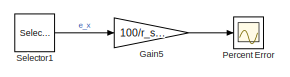
[diagram: root canvas - part 1/3, top right region]
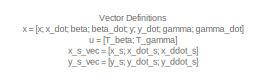
[diagram: root canvas - part 2/3, middle left region]
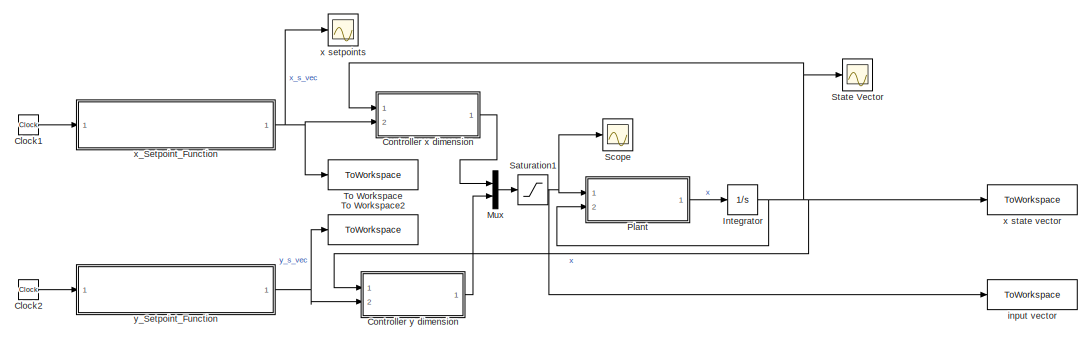
[diagram: root canvas - part 3/3, bottom left region]
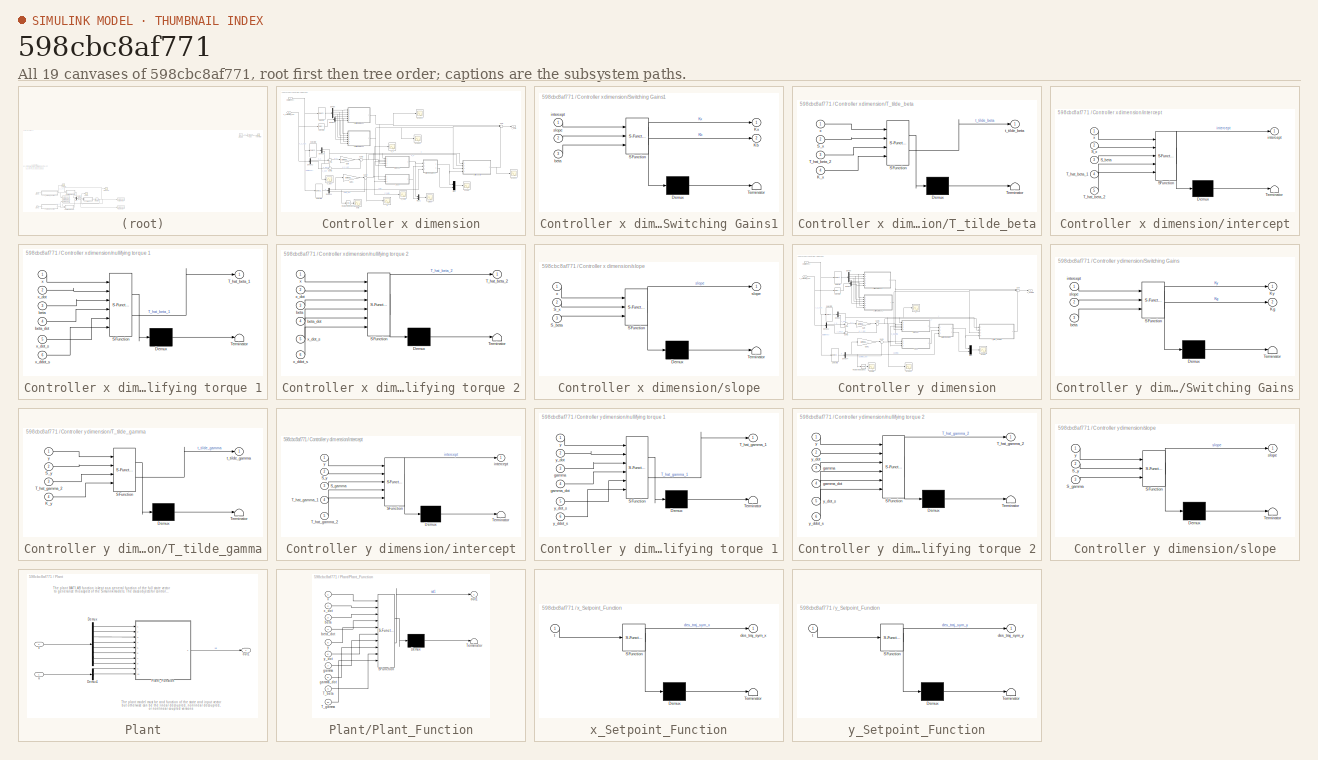
[diagram: thumbnail index - all 19 canvases of the model, root first then tree order]
MODEL slx_598cbc8af771
KIND model
CONFIG AbsTol = auto
CONFIG EnableMultiTasking = off
CONFIG FixedStep = auto
CONFIG MaxStep = auto
CONFIG MinStep = auto
CONFIG RelTol = 1e-9
CONFIG SampleTimeConstraint = Unconstrained
CONFIG SolverName = VariableStepAuto
CONFIG StartTime = 0.0
CONFIG StopTime = t_sim
BLOCK [Clock] Clock1
BLOCK [Clock] Clock2
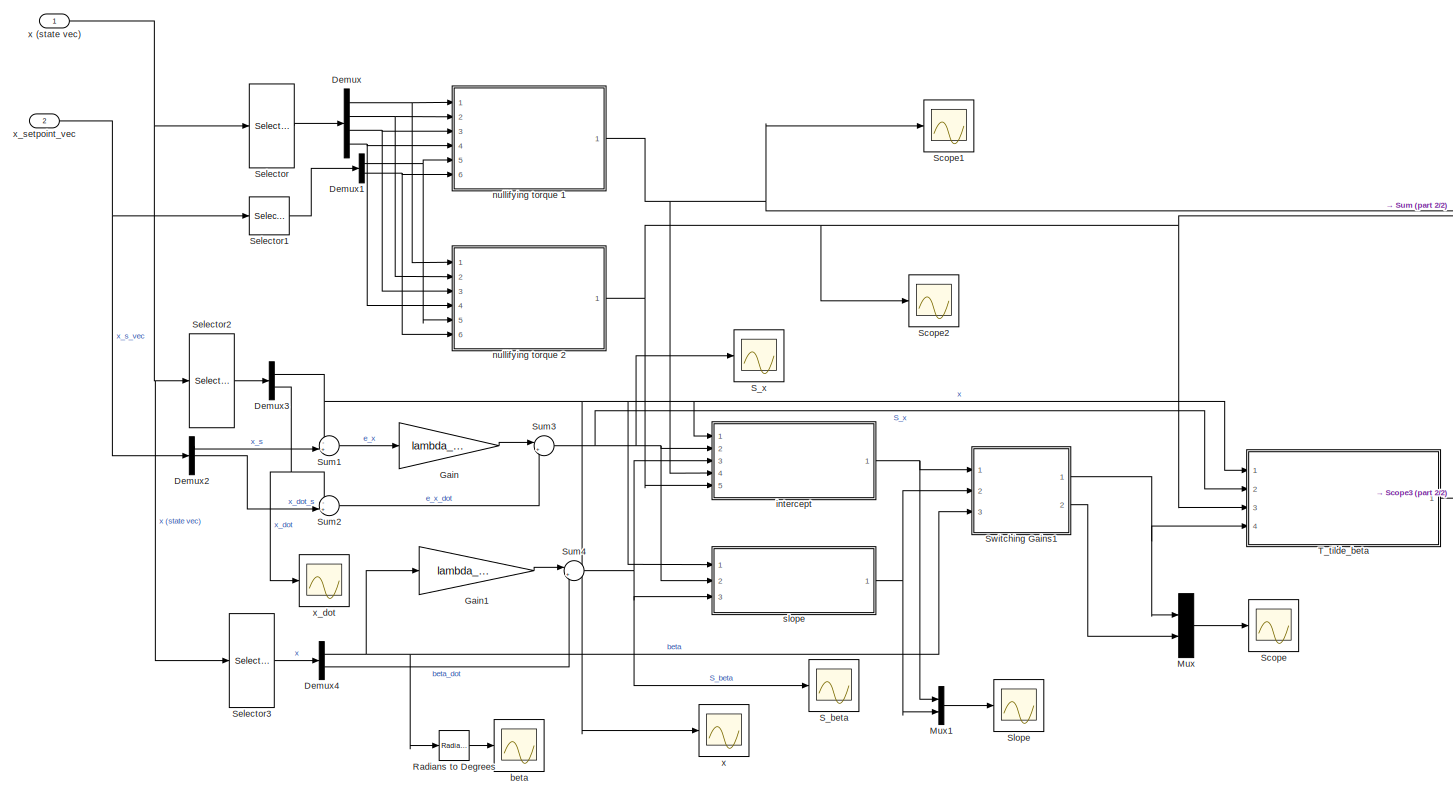
[diagram: Controller x dimension - part 1/2, most of the canvas]
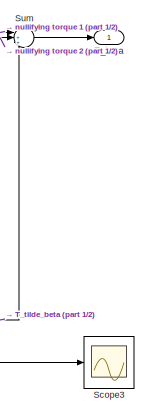
[diagram: Controller x dimension - part 2/2, middle right region]
BLOCK [SubSystem] Controller x dimension
  Ports = [2, 1]
  RequestExecContextInheritance = off
BLOCK [Demux] Controller x dimension/Demux
  NameLocation = right
  Ports = [1, 4]
BLOCK [Demux] Controller x dimension/Demux1
  Outputs = 2
  Ports = [1, 2]
BLOCK [Demux] Controller x dimension/Demux2
  Outputs = 3
  Ports = [1, 3]
BLOCK [Demux] Controller x dimension/Demux3
  Outputs = 2
  Ports = [1, 2]
BLOCK [Demux] Controller x dimension/Demux4
  Outputs = 2
  Ports = [1, 2]
BLOCK [Gain] Controller x dimension/Gain
  Gain = lambda_x_num
BLOCK [Gain] Controller x dimension/Gain1
  Gain = lambda_beta_num
BLOCK [Mux] Controller x dimension/Mux
  DisplayOption = bar
  Inputs = 2
  Ports = [2, 1]
BLOCK [Mux] Controller x dimension/Mux1
  DisplayOption = bar
  Inputs = 2
  Ports = [2, 1]
BLOCK [Reference] Controller x dimension/Radians to Degrees  REF=simulink_extras/Transformations/Radians
to Degrees
  Ports = [1, 1]
  SourceBlock = simulink_extras/Transformations/Radians\nto Degrees
  SourceProductBaseCode = SL
  SourceType = RadiansToDegrees
BLOCK [Scope] Controller x dimension/S_beta
  Floating = off
  NumInputPorts = 1
  Ports = [1]
  ScopeSpecificationString = Simulink.scopes.TimeScopeBlockCfg('CurrentConfiguration', extmgr.ConfigurationSet(extmgr.Configuration('Core','General UI',true),extmgr.Configuration('Core','Source UI',true),extmgr.Configuration('Sources','WiredSimulink',true,'DataLoggingVariableName','ScopeData2'),extmgr.Configuration('Visuals','Time Domain',true,'SerializedDisplays',{struct('MinYLimReal','-383.83681','MaxYLimReal','3454.54213',...<+1456ch>
BLOCK [Scope] Controller x dimension/S_x
  Floating = off
  NumInputPorts = 1
  Ports = [1]
  ScopeSpecificationString = Simulink.scopes.TimeScopeBlockCfg('CurrentConfiguration', extmgr.ConfigurationSet(extmgr.Configuration('Core','General UI',true),extmgr.Configuration('Core','Source UI',true),extmgr.Configuration('Sources','WiredSimulink',true,'DataLoggingVariableName','ScopeData1'),extmgr.Configuration('Visuals','Time Domain',true,'SerializedDisplays',{struct('MinYLimReal','-233.52913','MaxYLimReal','22.58708','Y...<+1448ch>
BLOCK [Scope] Controller x dimension/Scope
  Floating = off
  NumInputPorts = 1
  Ports = [1]
  ScopeSpecificationString = Simulink.scopes.TimeScopeBlockCfg('CurrentConfiguration', extmgr.ConfigurationSet(extmgr.Configuration('Core','General UI',true),extmgr.Configuration('Core','Source UI',true),extmgr.Configuration('Sources','WiredSimulink',true,'DataLoggingVariableName','ScopeData1'),extmgr.Configuration('Visuals','Time Domain',true,'SerializedDisplays',{struct('MinYLimReal','-68.07854','MaxYLimReal','696.88537','Y...<+1507ch>
BLOCK [Scope] Controller x dimension/Scope1
  Floating = off
  NumInputPorts = 1
  Ports = [1]
  ScopeSpecificationString = Simulink.scopes.TimeScopeBlockCfg('CurrentConfiguration', extmgr.ConfigurationSet(extmgr.Configuration('Core','General UI',true),extmgr.Configuration('Core','Source UI',true),extmgr.Configuration('Sources','WiredSimulink',true,'DataLoggingVariableName','ScopeData5'),extmgr.Configuration('Visuals','Time Domain',true,'SerializedDisplays',{struct('MinYLimReal','-12935.85065','MaxYLimReal','116436.289...<+1485ch>
BLOCK [Scope] Controller x dimension/Scope2
  Floating = off
  NumInputPorts = 1
  Ports = [1]
  ScopeSpecificationString = Simulink.scopes.TimeScopeBlockCfg('CurrentConfiguration', extmgr.ConfigurationSet(extmgr.Configuration('Core','General UI',true),extmgr.Configuration('Core','Source UI',true),extmgr.Configuration('Sources','WiredSimulink',true,'DataLoggingVariableName','ScopeData6'),extmgr.Configuration('Visuals','Time Domain',true,'SerializedDisplays',{struct('MinYLimReal','-0.05977','MaxYLimReal','0.00181','YLab...<+1451ch>
BLOCK [Scope] Controller x dimension/Scope3
  Floating = off
  NumInputPorts = 1
  Ports = [1]
  ScopeSpecificationString = Simulink.scopes.TimeScopeBlockCfg('CurrentConfiguration', extmgr.ConfigurationSet(extmgr.Configuration('Core','General UI',true),extmgr.Configuration('Core','Source UI',true),extmgr.Configuration('Sources','WiredSimulink',true,'DataLoggingVariableName','ScopeData4'),extmgr.Configuration('Visuals','Time Domain',true,'SerializedDisplays',{struct('MinYLimReal','-9662.22264','MaxYLimReal','86980.13073...<+1495ch>
BLOCK [Selector] Controller x dimension/Selector
  IndexOptions = Index vector (dialog)
  Indices = [1:4]
  InputPortWidth = 8
  OutputSizes = 1
  Ports = [1, 1]
BLOCK [Selector] Controller x dimension/Selector1
  IndexOptions = Index vector (dialog)
  Indices = [2 3]
  InputPortWidth = 3
  OutputSizes = 1
  Ports = [1, 1]
BLOCK [Selector] Controller x dimension/Selector2
  IndexOptions = Index vector (dialog)
  Indices = [1 2]
  InputPortWidth = 8
  OutputSizes = 1
  Ports = [1, 1]
BLOCK [Selector] Controller x dimension/Selector3
  IndexOptions = Index vector (dialog)
  Indices = [3 4]
  InputPortWidth = 8
  OutputSizes = 1
  Ports = [1, 1]
BLOCK [Scope] Controller x dimension/Slope
  Floating = off
  NumInputPorts = 1
  Ports = [1]
  ScopeSpecificationString = Simulink.scopes.TimeScopeBlockCfg('CurrentConfiguration', extmgr.ConfigurationSet(extmgr.Configuration('Core','General UI',true),extmgr.Configuration('Core','Source UI',true),extmgr.Configuration('Sources','WiredSimulink',true,'DataLoggingVariableName','ScopeData3'),extmgr.Configuration('Visuals','Time Domain',true,'SerializedDisplays',{struct('MinYLimReal','-26.32584','MaxYLimReal','-14.72554','Y...<+1455ch>
BLOCK [Sum] Controller x dimension/Sum
  Inputs = |+++
  Ports = [3, 1]
BLOCK [Sum] Controller x dimension/Sum1
  Inputs = -+|
  Ports = [2, 1]
BLOCK [Sum] Controller x dimension/Sum2
  Inputs = -+|
  Ports = [2, 1]
BLOCK [Sum] Controller x dimension/Sum3
  Inputs = |++
  Ports = [2, 1]
BLOCK [Sum] Controller x dimension/Sum4
  Inputs = |++
  Ports = [2, 1]
BLOCK [SubSystem] Controller x dimension/Switching Gains1
  ErrorFcn = Stateflow.Translate.translate
  PermitHierarchicalResolution = ExplicitOnly
  Ports = [3, 2]
  RequestExecContextInheritance = off
  SFBlockType = MATLAB Function
  TreatAsAtomicUnit = on
BLOCK [Demux] Controller x dimension/Switching Gains1/ Demux 
  Outputs = 1
  Ports = [1, 1]
BLOCK [S-Function] Controller x dimension/Switching Gains1/ SFunction 
  EnableBusSupport = on
  FunctionName = sf_sfun
  PortCounts = [3 3]
  Ports = [3, 3]
  SFcnIsStateOwnerBlock = off
  SFunctionDeploymentMode = off
  Tag = Stateflow S-Function 17
BLOCK [Terminator] Controller x dimension/Switching Gains1/ Terminator 
BLOCK [Outport] Controller x dimension/Switching Gains1/Kb
  Port = 2
BLOCK [Outport] Controller x dimension/Switching Gains1/Kx
BLOCK [Inport] Controller x dimension/Switching Gains1/beta
  Port = 3
BLOCK [Inport] Controller x dimension/Switching Gains1/intercept
BLOCK [Inport] Controller x dimension/Switching Gains1/slope
  Port = 2
BLOCK [Outport] Controller x dimension/T_beta
BLOCK [SubSystem] Controller x dimension/T_tilde_beta
  ErrorFcn = Stateflow.Translate.translate
  PermitHierarchicalResolution = ExplicitOnly
  Ports = [4, 1]
  RequestExecContextInheritance = off
  SFBlockType = MATLAB Function
  TreatAsAtomicUnit = on
BLOCK [Demux] Controller x dimension/T_tilde_beta/ Demux 
  Outputs = 1
  Ports = [1, 1]
BLOCK [S-Function] Controller x dimension/T_tilde_beta/ SFunction 
  EnableBusSupport = on
  FunctionName = sf_sfun
  PortCounts = [4 2]
  Ports = [4, 2]
  SFcnIsStateOwnerBlock = off
  SFunctionDeploymentMode = off
  Tag = Stateflow S-Function 11
BLOCK [Terminator] Controller x dimension/T_tilde_beta/ Terminator 
BLOCK [Inport] Controller x dimension/T_tilde_beta/K_x
  Port = 4
BLOCK [Inport] Controller x dimension/T_tilde_beta/S_x
  Port = 2
BLOCK [Inport] Controller x dimension/T_tilde_beta/T_hat_beta_2
  Port = 3
BLOCK [Outport] Controller x dimension/T_tilde_beta/t_tilde_beta
BLOCK [Inport] Controller x dimension/T_tilde_beta/x
BLOCK [Scope] Controller x dimension/beta
  Floating = off
  NumInputPorts = 1
  Ports = [1]
  ScopeSpecificationString = Simulink.scopes.TimeScopeBlockCfg('CurrentConfiguration', extmgr.ConfigurationSet(extmgr.Configuration('Core','General UI',true),extmgr.Configuration('Core','Source UI',true),extmgr.Configuration('Sources','WiredSimulink',true,'DataLoggingVariableName','ScopeData7'),extmgr.Configuration('Visuals','Time Domain',true,'SerializedDisplays',{struct('MinYLimReal','0.00007275799','MaxYLimReal','0.0000727...<+1496ch>
BLOCK [SubSystem] Controller x dimension/intercept
  ErrorFcn = Stateflow.Translate.translate
  PermitHierarchicalResolution = ExplicitOnly
  Ports = [5, 1]
  RequestExecContextInheritance = off
  SFBlockType = MATLAB Function
  TreatAsAtomicUnit = on
BLOCK [Demux] Controller x dimension/intercept/ Demux 
  Outputs = 1
  Ports = [1, 1]
BLOCK [S-Function] Controller x dimension/intercept/ SFunction 
  EnableBusSupport = on
  FunctionName = sf_sfun
  PortCounts = [5 2]
  Ports = [5, 2]
  SFcnIsStateOwnerBlock = off
  SFunctionDeploymentMode = off
  Tag = Stateflow S-Function 9
BLOCK [Terminator] Controller x dimension/intercept/ Terminator 
BLOCK [Inport] Controller x dimension/intercept/S_beta
  Port = 3
BLOCK [Inport] Controller x dimension/intercept/S_x
  Port = 2
BLOCK [Inport] Controller x dimension/intercept/T_hat_beta_1
  Port = 4
BLOCK [Inport] Controller x dimension/intercept/T_hat_beta_2
  Port = 5
BLOCK [Outport] Controller x dimension/intercept/intercept
BLOCK [Inport] Controller x dimension/intercept/x
BLOCK [SubSystem] Controller x dimension/nullifying torque 1
  ErrorFcn = Stateflow.Translate.translate
  PermitHierarchicalResolution = ExplicitOnly
  Ports = [6, 1]
  RequestExecContextInheritance = off
  SFBlockType = MATLAB Function
  TreatAsAtomicUnit = on
BLOCK [Demux] Controller x dimension/nullifying torque 1/ Demux 
  Outputs = 1
  Ports = [1, 1]
BLOCK [S-Function] Controller x dimension/nullifying torque 1/ SFunction 
  EnableBusSupport = on
  FunctionName = sf_sfun
  PortCounts = [6 2]
  Ports = [6, 2]
  SFcnIsStateOwnerBlock = off
  SFunctionDeploymentMode = off
  Tag = Stateflow S-Function 5
BLOCK [Terminator] Controller x dimension/nullifying torque 1/ Terminator 
BLOCK [Outport] Controller x dimension/nullifying torque 1/T_hat_beta_1
BLOCK [Inport] Controller x dimension/nullifying torque 1/beta
  Port = 3
BLOCK [Inport] Controller x dimension/nullifying torque 1/beta_dot
  Port = 4
BLOCK [Inport] Controller x dimension/nullifying torque 1/x
BLOCK [Inport] Controller x dimension/nullifying torque 1/x_ddot_s
  Port = 6
BLOCK [Inport] Controller x dimension/nullifying torque 1/x_dot
  Port = 2
BLOCK [Inport] Controller x dimension/nullifying torque 1/x_dot_s
  Port = 5
BLOCK [SubSystem] Controller x dimension/nullifying torque 2
  ErrorFcn = Stateflow.Translate.translate
  PermitHierarchicalResolution = ExplicitOnly
  Ports = [6, 1]
  RequestExecContextInheritance = off
  SFBlockType = MATLAB Function
  TreatAsAtomicUnit = on
BLOCK [Demux] Controller x dimension/nullifying torque 2/ Demux 
  Outputs = 1
  Ports = [1, 1]
BLOCK [S-Function] Controller x dimension/nullifying torque 2/ SFunction 
  EnableBusSupport = on
  FunctionName = sf_sfun
  PortCounts = [6 2]
  Ports = [6, 2]
  SFcnIsStateOwnerBlock = off
  SFunctionDeploymentMode = off
  Tag = Stateflow S-Function 4
BLOCK [Terminator] Controller x dimension/nullifying torque 2/ Terminator 
BLOCK [Outport] Controller x dimension/nullifying torque 2/T_hat_beta_2
BLOCK [Inport] Controller x dimension/nullifying torque 2/beta
  Port = 3
BLOCK [Inport] Controller x dimension/nullifying torque 2/beta_dot
  Port = 4
BLOCK [Inport] Controller x dimension/nullifying torque 2/x
BLOCK [Inport] Controller x dimension/nullifying torque 2/x_ddot_s
  Port = 6
BLOCK [Inport] Controller x dimension/nullifying torque 2/x_dot
  Port = 2
BLOCK [Inport] Controller x dimension/nullifying torque 2/x_dot_s
  Port = 5
BLOCK [SubSystem] Controller x dimension/slope
  ErrorFcn = Stateflow.Translate.translate
  PermitHierarchicalResolution = ExplicitOnly
  Ports = [3, 1]
  RequestExecContextInheritance = off
  SFBlockType = MATLAB Function
  TreatAsAtomicUnit = on
BLOCK [Demux] Controller x dimension/slope/ Demux 
  Outputs = 1
  Ports = [1, 1]
BLOCK [S-Function] Controller x dimension/slope/ SFunction 
  EnableBusSupport = on
  FunctionName = sf_sfun
  PortCounts = [3 2]
  Ports = [3, 2]
  SFcnIsStateOwnerBlock = off
  SFunctionDeploymentMode = off
  Tag = Stateflow S-Function 8
BLOCK [Terminator] Controller x dimension/slope/ Terminator 
BLOCK [Inport] Controller x dimension/slope/S_beta
  Port = 3
BLOCK [Inport] Controller x dimension/slope/S_x
  Port = 2
BLOCK [Outport] Controller x dimension/slope/slope
BLOCK [Inport] Controller x dimension/slope/x
BLOCK [Scope] Controller x dimension/x
  Floating = off
  NumInputPorts = 1
  Ports = [1]
  ScopeSpecificationString = Simulink.scopes.TimeScopeBlockCfg('CurrentConfiguration', extmgr.ConfigurationSet(extmgr.Configuration('Core','General UI',true),extmgr.Configuration('Core','Source UI',true),extmgr.Configuration('Sources','WiredSimulink',true,'DataLoggingVariableName','ScopeData8'),extmgr.Configuration('Visuals','Time Domain',true,'SerializedDisplays',{struct('MinYLimReal','-4.18215','MaxYLimReal','41.85697','YLa...<+1437ch>
BLOCK [Inport] Controller x dimension/x (state vec)
BLOCK [Scope] Controller x dimension/x_dot
  Floating = off
  NumInputPorts = 1
  Ports = [1]
  ScopeSpecificationString = Simulink.scopes.TimeScopeBlockCfg('CurrentConfiguration', extmgr.ConfigurationSet(extmgr.Configuration('Core','General UI',true),extmgr.Configuration('Core','Source UI',true),extmgr.Configuration('Sources','WiredSimulink',true,'DataLoggingVariableName','ScopeData1'),extmgr.Configuration('Visuals','Time Domain',true,'SerializedDisplays',{struct('MinYLimReal','-0.00003','MaxYLimReal','0.000014','YLa...<+1441ch>
BLOCK [Inport] Controller x dimension/x_setpoint_vec
  Port = 2
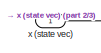
[diagram: Controller y dimension - part 1/3, top left region]
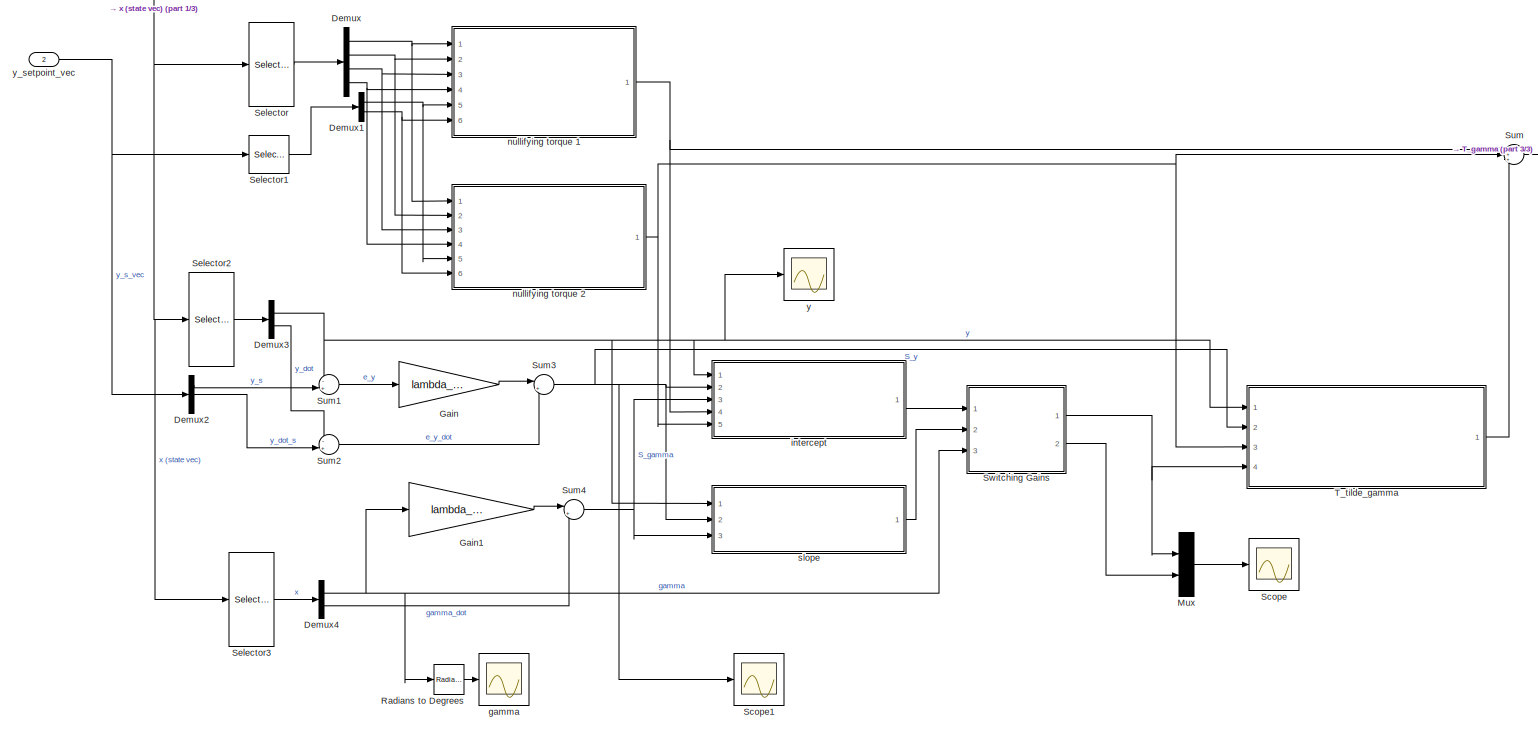
[diagram: Controller y dimension - part 2/3, most of the canvas]
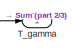
[diagram: Controller y dimension - part 3/3, top right region]
BLOCK [SubSystem] Controller y dimension
  NameLocation = top
  Ports = [2, 1]
  RequestExecContextInheritance = off
BLOCK [Demux] Controller y dimension/Demux
  NameLocation = right
  Ports = [1, 4]
BLOCK [Demux] Controller y dimension/Demux1
  Outputs = 2
  Ports = [1, 2]
BLOCK [Demux] Controller y dimension/Demux2
  Outputs = 3
  Ports = [1, 3]
BLOCK [Demux] Controller y dimension/Demux3
  Outputs = 2
  Ports = [1, 2]
BLOCK [Demux] Controller y dimension/Demux4
  Outputs = 2
  Ports = [1, 2]
BLOCK [Gain] Controller y dimension/Gain
  Gain = lambda_y_num
BLOCK [Gain] Controller y dimension/Gain1
  Gain = lambda_gamma_num
BLOCK [Mux] Controller y dimension/Mux
  DisplayOption = bar
  Inputs = 2
  Ports = [2, 1]
BLOCK [Reference] Controller y dimension/Radians to Degrees  REF=simulink_extras/Transformations/Radians
to Degrees
  Ports = [1, 1]
  SourceBlock = simulink_extras/Transformations/Radians\nto Degrees
  SourceProductBaseCode = SL
  SourceType = RadiansToDegrees
BLOCK [Scope] Controller y dimension/Scope
  Floating = off
  NumInputPorts = 1
  Ports = [1]
  ScopeSpecificationString = Simulink.scopes.TimeScopeBlockCfg('CurrentConfiguration', extmgr.ConfigurationSet(extmgr.Configuration('Core','General UI',true),extmgr.Configuration('Core','Source UI',true),extmgr.Configuration('Sources','WiredSimulink',true,'DataLoggingVariableName','ScopeData2'),extmgr.Configuration('Visuals','Time Domain',true,'SerializedDisplays',{struct('MinYLimReal','-24911229.87124','MaxYLimReal','2241608...<+1481ch>
BLOCK [Scope] Controller y dimension/Scope1
  Floating = off
  NumInputPorts = 1
  Ports = [1]
  ScopeSpecificationString = Simulink.scopes.TimeScopeBlockCfg('CurrentConfiguration', extmgr.ConfigurationSet(extmgr.Configuration('Core','General UI',true),extmgr.Configuration('Core','Source UI',true),extmgr.Configuration('Sources','WiredSimulink',true,'DataLoggingVariableName','ScopeData3'),extmgr.Configuration('Visuals','Time Domain',true,'SerializedDisplays',{struct('MinYLimReal','-79072.42359','MaxYLimReal','8785.82484...<+1445ch>
BLOCK [Selector] Controller y dimension/Selector
  IndexOptions = Index vector (dialog)
  Indices = [5:8]
  InputPortWidth = 8
  OutputSizes = 1
  Ports = [1, 1]
BLOCK [Selector] Controller y dimension/Selector1
  IndexOptions = Index vector (dialog)
  Indices = [2 3]
  InputPortWidth = 3
  OutputSizes = 1
  Ports = [1, 1]
BLOCK [Selector] Controller y dimension/Selector2
  IndexOptions = Index vector (dialog)
  Indices = [5 6]
  InputPortWidth = 8
  OutputSizes = 1
  Ports = [1, 1]
BLOCK [Selector] Controller y dimension/Selector3
  IndexOptions = Index vector (dialog)
  Indices = [7 8]
  InputPortWidth = 8
  OutputSizes = 1
  Ports = [1, 1]
BLOCK [Sum] Controller y dimension/Sum
  Inputs = |+++
  Ports = [3, 1]
BLOCK [Sum] Controller y dimension/Sum1
  Inputs = -+|
  Ports = [2, 1]
BLOCK [Sum] Controller y dimension/Sum2
  Inputs = -+|
  Ports = [2, 1]
BLOCK [Sum] Controller y dimension/Sum3
  Inputs = |++
  Ports = [2, 1]
BLOCK [Sum] Controller y dimension/Sum4
  Inputs = |++
  Ports = [2, 1]
BLOCK [SubSystem] Controller y dimension/Switching Gains
  ErrorFcn = Stateflow.Translate.translate
  PermitHierarchicalResolution = ExplicitOnly
  Ports = [3, 2]
  RequestExecContextInheritance = off
  SFBlockType = MATLAB Function
  TreatAsAtomicUnit = on
BLOCK [Demux] Controller y dimension/Switching Gains/ Demux 
  Outputs = 1
  Ports = [1, 1]
BLOCK [S-Function] Controller y dimension/Switching Gains/ SFunction 
  EnableBusSupport = on
  FunctionName = sf_sfun
  PortCounts = [3 3]
  Ports = [3, 3]
  SFcnIsStateOwnerBlock = off
  SFunctionDeploymentMode = off
  Tag = Stateflow S-Function 6
BLOCK [Terminator] Controller y dimension/Switching Gains/ Terminator 
BLOCK [Outport] Controller y dimension/Switching Gains/Kg
  Port = 2
BLOCK [Outport] Controller y dimension/Switching Gains/Ky
BLOCK [Inport] Controller y dimension/Switching Gains/beta
  Port = 3
BLOCK [Inport] Controller y dimension/Switching Gains/intercept
BLOCK [Inport] Controller y dimension/Switching Gains/slope
  Port = 2
BLOCK [Outport] Controller y dimension/T_gamma
BLOCK [SubSystem] Controller y dimension/T_tilde_gamma
  ErrorFcn = Stateflow.Translate.translate
  PermitHierarchicalResolution = ExplicitOnly
  Ports = [4, 1]
  RequestExecContextInheritance = off
  SFBlockType = MATLAB Function
  TreatAsAtomicUnit = on
BLOCK [Demux] Controller y dimension/T_tilde_gamma/ Demux 
  Outputs = 1
  Ports = [1, 1]
BLOCK [S-Function] Controller y dimension/T_tilde_gamma/ SFunction 
  EnableBusSupport = on
  FunctionName = sf_sfun
  PortCounts = [4 2]
  Ports = [4, 2]
  SFcnIsStateOwnerBlock = off
  SFunctionDeploymentMode = off
  Tag = Stateflow S-Function 7
BLOCK [Terminator] Controller y dimension/T_tilde_gamma/ Terminator 
BLOCK [Inport] Controller y dimension/T_tilde_gamma/K_y
  Port = 4
BLOCK [Inport] Controller y dimension/T_tilde_gamma/S_y
  Port = 2
BLOCK [Inport] Controller y dimension/T_tilde_gamma/T_hat_gamma_2
  Port = 3
BLOCK [Outport] Controller y dimension/T_tilde_gamma/t_tilde_gamma
BLOCK [Inport] Controller y dimension/T_tilde_gamma/y
BLOCK [Scope] Controller y dimension/gamma
  Floating = off
  NumInputPorts = 1
  Ports = [1]
  ScopeSpecificationString = Simulink.scopes.TimeScopeBlockCfg('CurrentConfiguration', extmgr.ConfigurationSet(extmgr.Configuration('Core','General UI',true),extmgr.Configuration('Core','Source UI',true),extmgr.Configuration('Sources','WiredSimulink',true,'DataLoggingVariableName','ScopeData2'),extmgr.Configuration('Visuals','Time Domain',true,'SerializedDisplays',{struct('MinYLimReal','-485.42224','MaxYLimReal','53.93586','Y...<+1462ch>
BLOCK [SubSystem] Controller y dimension/intercept
  ErrorFcn = Stateflow.Translate.translate
  PermitHierarchicalResolution = ExplicitOnly
  Ports = [5, 1]
  RequestExecContextInheritance = off
  SFBlockType = MATLAB Function
  TreatAsAtomicUnit = on
BLOCK [Demux] Controller y dimension/intercept/ Demux 
  Outputs = 1
  Ports = [1, 1]
BLOCK [S-Function] Controller y dimension/intercept/ SFunction 
  EnableBusSupport = on
  FunctionName = sf_sfun
  PortCounts = [5 2]
  Ports = [5, 2]
  SFcnIsStateOwnerBlock = off
  SFunctionDeploymentMode = off
  Tag = Stateflow S-Function 12
BLOCK [Terminator] Controller y dimension/intercept/ Terminator 
BLOCK [Inport] Controller y dimension/intercept/S_gamma
  Port = 3
BLOCK [Inport] Controller y dimension/intercept/S_y
  Port = 2
BLOCK [Inport] Controller y dimension/intercept/T_hat_gamma_1
  Port = 4
BLOCK [Inport] Controller y dimension/intercept/T_hat_gamma_2
  Port = 5
BLOCK [Outport] Controller y dimension/intercept/intercept
BLOCK [Inport] Controller y dimension/intercept/y
BLOCK [SubSystem] Controller y dimension/nullifying torque 1
  ErrorFcn = Stateflow.Translate.translate
  PermitHierarchicalResolution = ExplicitOnly
  Ports = [6, 1]
  RequestExecContextInheritance = off
  SFBlockType = MATLAB Function
  TreatAsAtomicUnit = on
BLOCK [Demux] Controller y dimension/nullifying torque 1/ Demux 
  Outputs = 1
  Ports = [1, 1]
BLOCK [S-Function] Controller y dimension/nullifying torque 1/ SFunction 
  EnableBusSupport = on
  FunctionName = sf_sfun
  PortCounts = [6 2]
  Ports = [6, 2]
  SFcnIsStateOwnerBlock = off
  SFunctionDeploymentMode = off
  Tag = Stateflow S-Function 13
BLOCK [Terminator] Controller y dimension/nullifying torque 1/ Terminator 
BLOCK [Outport] Controller y dimension/nullifying torque 1/T_hat_gamma_1
BLOCK [Inport] Controller y dimension/nullifying torque 1/gamma
  Port = 3
BLOCK [Inport] Controller y dimension/nullifying torque 1/gamma_dot
  Port = 4
BLOCK [Inport] Controller y dimension/nullifying torque 1/y
BLOCK [Inport] Controller y dimension/nullifying torque 1/y_ddot_s
  Port = 6
BLOCK [Inport] Controller y dimension/nullifying torque 1/y_dot
  Port = 2
BLOCK [Inport] Controller y dimension/nullifying torque 1/y_dot_s
  Port = 5
BLOCK [SubSystem] Controller y dimension/nullifying torque 2
  ErrorFcn = Stateflow.Translate.translate
  PermitHierarchicalResolution = ExplicitOnly
  Ports = [6, 1]
  RequestExecContextInheritance = off
  SFBlockType = MATLAB Function
  TreatAsAtomicUnit = on
BLOCK [Demux] Controller y dimension/nullifying torque 2/ Demux 
  Outputs = 1
  Ports = [1, 1]
BLOCK [S-Function] Controller y dimension/nullifying torque 2/ SFunction 
  EnableBusSupport = on
  FunctionName = sf_sfun
  PortCounts = [6 2]
  Ports = [6, 2]
  SFcnIsStateOwnerBlock = off
  SFunctionDeploymentMode = off
  Tag = Stateflow S-Function 14
BLOCK [Terminator] Controller y dimension/nullifying torque 2/ Terminator 
BLOCK [Outport] Controller y dimension/nullifying torque 2/T_hat_gamma_2
BLOCK [Inport] Controller y dimension/nullifying torque 2/gamma
  Port = 3
BLOCK [Inport] Controller y dimension/nullifying torque 2/gamma_dot
  Port = 4
BLOCK [Inport] Controller y dimension/nullifying torque 2/y
BLOCK [Inport] Controller y dimension/nullifying torque 2/y_ddot_s
  Port = 6
BLOCK [Inport] Controller y dimension/nullifying torque 2/y_dot
  Port = 2
BLOCK [Inport] Controller y dimension/nullifying torque 2/y_dot_s
  Port = 5
BLOCK [SubSystem] Controller y dimension/slope
  ErrorFcn = Stateflow.Translate.translate
  PermitHierarchicalResolution = ExplicitOnly
  Ports = [3, 1]
  RequestExecContextInheritance = off
  SFBlockType = MATLAB Function
  TreatAsAtomicUnit = on
BLOCK [Demux] Controller y dimension/slope/ Demux 
  Outputs = 1
  Ports = [1, 1]
BLOCK [S-Function] Controller y dimension/slope/ SFunction 
  EnableBusSupport = on
  FunctionName = sf_sfun
  PortCounts = [3 2]
  Ports = [3, 2]
  SFcnIsStateOwnerBlock = off
  SFunctionDeploymentMode = off
  Tag = Stateflow S-Function 15
BLOCK [Terminator] Controller y dimension/slope/ Terminator 
BLOCK [Inport] Controller y dimension/slope/S_gamma
  Port = 3
BLOCK [Inport] Controller y dimension/slope/S_y
  Port = 2
BLOCK [Outport] Controller y dimension/slope/slope
BLOCK [Inport] Controller y dimension/slope/y
BLOCK [Inport] Controller y dimension/x (state vec)
BLOCK [Scope] Controller y dimension/y
  Floating = off
  NumInputPorts = 1
  Ports = [1]
  ScopeSpecificationString = Simulink.scopes.TimeScopeBlockCfg('CurrentConfiguration', extmgr.ConfigurationSet(extmgr.Configuration('Core','General UI',true),extmgr.Configuration('Core','Source UI',true),extmgr.Configuration('Sources','WiredSimulink',true,'DataLoggingVariableName','ScopeData3'),extmgr.Configuration('Visuals','Time Domain',true,'SerializedDisplays',{struct('MinYLimReal','-1.30274','MaxYLimReal','11.72464','YLa...<+1436ch>
BLOCK [Inport] Controller y dimension/y_setpoint_vec
  Port = 2
BLOCK [Gain] Gain5
  Commented = on
  Gain = 100/r_sim
BLOCK [Integrator] Integrator
  InitialCondition = x_0
  Ports = [1, 1]
BLOCK [Mux] Mux
  DisplayOption = bar
  Inputs = 2
  Ports = [2, 1]
BLOCK [Scope] Percent Error
  Commented = on
  Floating = off
  NumInputPorts = 1
  Ports = [1]
  ScopeSpecificationString = Simulink.scopes.TimeScopeBlockCfg('CurrentConfiguration', extmgr.ConfigurationSet(extmgr.Configuration('Core','General UI',true),extmgr.Configuration('Core','Source UI',true),extmgr.Configuration('Sources','WiredSimulink',true,'DataLoggingVariableName','ScopeData2'),extmgr.Configuration('Visuals','Time Domain',true,'SerializedDisplays',{struct('MinYLimReal','-1.29449','MaxYLimReal','1.86814','YLab...<+1556ch>
BLOCK [SubSystem] Plant
  Ports = [2, 1]
  RequestExecContextInheritance = off
BLOCK [Demux] Plant/Demux
  Outputs = 8
  Ports = [1, 8]
BLOCK [Demux] Plant/Demux1
  Outputs = 2
  Ports = [1, 2]
BLOCK [SubSystem] Plant/Plant_Function
  ErrorFcn = Stateflow.Translate.translate
  PermitHierarchicalResolution = ExplicitOnly
  Ports = [10, 1]
  RequestExecContextInheritance = off
  SFBlockType = MATLAB Function
  TreatAsAtomicUnit = on
BLOCK [Demux] Plant/Plant_Function/ Demux 
  Outputs = 1
  Ports = [1, 1]
BLOCK [S-Function] Plant/Plant_Function/ SFunction 
  EnableBusSupport = on
  FunctionName = sf_sfun
  PortCounts = [10 2]
  Ports = [10, 2]
  SFcnIsStateOwnerBlock = off
  SFunctionDeploymentMode = off
  Tag = Stateflow S-Function 1
BLOCK [Terminator] Plant/Plant_Function/ Terminator 
BLOCK [Inport] Plant/Plant_Function/T_beta
  Port = 9
BLOCK [Inport] Plant/Plant_Function/T_gamma
  Port = 10
BLOCK [Inport] Plant/Plant_Function/beta
  Port = 3
BLOCK [Inport] Plant/Plant_Function/beta_dot
  Port = 4
BLOCK [Inport] Plant/Plant_Function/gamma
  Port = 7
BLOCK [Inport] Plant/Plant_Function/gamma_dot
  Port = 8
BLOCK [Outport] Plant/Plant_Function/out1
BLOCK [Inport] Plant/Plant_Function/x
BLOCK [Inport] Plant/Plant_Function/x_dot
  Port = 2
BLOCK [Inport] Plant/Plant_Function/y
  Port = 5
BLOCK [Inport] Plant/Plant_Function/y_dot
  Port = 6
BLOCK [Outport] Plant/out1
BLOCK [Inport] Plant/u
BLOCK [Inport] Plant/x
  Port = 2
BLOCK [Saturate] Saturation1
  LowerLimit = -75/1000
  UpperLimit = 75/1000
  ZeroCross = off
BLOCK [Scope] Scope
  Floating = off
  NumInputPorts = 1
  Ports = [1]
  ScopeSpecificationString = Simulink.scopes.TimeScopeBlockCfg('CurrentConfiguration', extmgr.ConfigurationSet(extmgr.Configuration('Core','General UI',true),extmgr.Configuration('Core','Source UI',true),extmgr.Configuration('Sources','WiredSimulink',true,'DataLoggingVariableName','ScopeData4'),extmgr.Configuration('Visuals','Time Domain',true,'SerializedDisplays',{struct('MinYLimReal','-0.09375','MaxYLimReal','0.09375','YLab...<+1717ch>
BLOCK [Selector] Selector1
  Commented = on
  IndexOptions = Index vector (dialog)
  Indices = [1]
  InputPortWidth = 5
  OutputSizes = 1
  Ports = [1, 1]
BLOCK [Scope] State Vector
  Floating = off
  NumInputPorts = 1
  Ports = [1]
  ScopeSpecificationString = Simulink.scopes.TimeScopeBlockCfg('CurrentConfiguration', extmgr.ConfigurationSet(extmgr.Configuration('Core','General UI',true),extmgr.Configuration('Core','Source UI',true),extmgr.Configuration('Sources','WiredSimulink',true,'DataLoggingVariableName','ScopeData3'),extmgr.Configuration('Visuals','Time Domain',true,'SerializedDisplays',{struct('MinYLimReal','-0.15197','MaxYLimReal','1.27127','YLab...<+1595ch>
BLOCK [ToWorkspace] To Workspace
  FixptAsFi = on
  MaxDataPoints = inf
  Ports = [1]
  SampleTime = -1
  VariableName = x_s_vec
BLOCK [ToWorkspace] To Workspace2
  FixptAsFi = on
  MaxDataPoints = inf
  Ports = [1]
  SampleTime = -1
  VariableName = y_s_vec
BLOCK [ToWorkspace] input vector
  FixptAsFi = on
  MaxDataPoints = inf
  Ports = [1]
  SampleTime = -1
  VariableName = u
BLOCK [Scope] x setpoints
  Floating = off
  NumInputPorts = 1
  Ports = [1]
  ScopeSpecificationString = Simulink.scopes.TimeScopeBlockCfg('CurrentConfiguration', extmgr.ConfigurationSet(extmgr.Configuration('Core','General UI',true),extmgr.Configuration('Core','Source UI',true),extmgr.Configuration('Sources','WiredSimulink',true,'DataLoggingVariableName','ScopeData5'),extmgr.Configuration('Visuals','Time Domain',true,'SerializedDisplays',{struct('MinYLimReal','-5.33745','MaxYLimReal','5.89062','YLab...<+1583ch>
BLOCK [ToWorkspace] x state vector
  FixptAsFi = on
  MaxDataPoints = inf
  Ports = [1]
  SampleTime = -1
  VariableName = x
BLOCK [SubSystem] x_Setpoint_Function
  ErrorFcn = Stateflow.Translate.translate
  PermitHierarchicalResolution = ExplicitOnly
  Ports = [1, 1]
  RequestExecContextInheritance = off
  SFBlockType = MATLAB Function
  TreatAsAtomicUnit = on
BLOCK [Demux] x_Setpoint_Function/ Demux 
  Outputs = 1
  Ports = [1, 1]
BLOCK [S-Function] x_Setpoint_Function/ SFunction 
  EnableBusSupport = on
  FunctionName = sf_sfun
  PortCounts = [1 2]
  Ports = [1, 2]
  SFcnIsStateOwnerBlock = off
  SFunctionDeploymentMode = off
  Tag = Stateflow S-Function 2
BLOCK [Terminator] x_Setpoint_Function/ Terminator 
BLOCK [Outport] x_Setpoint_Function/des_traj_sym_x
BLOCK [Inport] x_Setpoint_Function/t
BLOCK [SubSystem] y_Setpoint_Function
  ErrorFcn = Stateflow.Translate.translate
  PermitHierarchicalResolution = ExplicitOnly
  Ports = [1, 1]
  RequestExecContextInheritance = off
  SFBlockType = MATLAB Function
  TreatAsAtomicUnit = on
BLOCK [Demux] y_Setpoint_Function/ Demux 
  Outputs = 1
  Ports = [1, 1]
BLOCK [S-Function] y_Setpoint_Function/ SFunction 
  EnableBusSupport = on
  FunctionName = sf_sfun
  PortCounts = [1 2]
  Ports = [1, 2]
  SFcnIsStateOwnerBlock = off
  SFunctionDeploymentMode = off
  Tag = Stateflow S-Function 3
BLOCK [Terminator] y_Setpoint_Function/ Terminator 
BLOCK [Outport] y_Setpoint_Function/des_traj_sym_y
BLOCK [Inport] y_Setpoint_Function/t
ANNOTATION (root): Vector Definitions x = [x; x_dot; beta; beta_dot; y; y_dot; gamma; gamma_dot] u = [T_beta; T_gamma] x_s_vec = [x_s; x_dot_s; x_ddot_s] y_s_vec = [y_s; y_dot_s; y_ddot_s]
ANNOTATION Plant: The plant MATLAB function is kept as a general function of the full state vector to generalize this aspect of the Simulink models. The class objects for controllers must define this function in terms of all possible inputs. It is ok for certain inputs to be unused.
ANNOTATION Plant: The plant model must be and function of the state and input vector but otherwise can be the linear decoupled, nonlinear decoupled, or nonlinear coupled versions
LINE Clock1:1 -> x_Setpoint_Function:1
LINE Clock2:1 -> y_Setpoint_Function:1
NET Controller x dimension/Demux1:1 -> Controller x dimension/nullifying torque 1:5, Controller x dimension/nullifying torque 2:5
NET Controller x dimension/Demux1:2 -> Controller x dimension/nullifying torque 1:6, Controller x dimension/nullifying torque 2:6
LINE Controller x dimension/Demux2:1 -> Controller x dimension/Sum1:2
LINE Controller x dimension/Demux2:2 -> Controller x dimension/Sum2:2
NET Controller x dimension/Demux3:1 -> Controller x dimension/Sum1:1, Controller x dimension/T_tilde_beta:1, Controller x dimension/intercept:1, Controller x dimension/slope:1, Controller x dimension/x:1
NET Controller x dimension/Demux3:2 -> Controller x dimension/Sum2:1, Controller x dimension/x_dot:1
NET Controller x dimension/Demux4:1 -> Controller x dimension/Gain1:1, Controller x dimension/Radians to Degrees:1, Controller x dimension/Switching Gains1:3
LINE Controller x dimension/Demux4:2 -> Controller x dimension/Sum4:2
NET Controller x dimension/Demux:1 -> Controller x dimension/nullifying torque 1:1, Controller x dimension/nullifying torque 2:1
NET Controller x dimension/Demux:2 -> Controller x dimension/nullifying torque 1:2, Controller x dimension/nullifying torque 2:2
NET Controller x dimension/Demux:3 -> Controller x dimension/nullifying torque 1:3, Controller x dimension/nullifying torque 2:3
NET Controller x dimension/Demux:4 -> Controller x dimension/nullifying torque 1:4, Controller x dimension/nullifying torque 2:4
LINE Controller x dimension/Gain1:1 -> Controller x dimension/Sum4:1
LINE Controller x dimension/Gain:1 -> Controller x dimension/Sum3:1
LINE Controller x dimension/Mux1:1 -> Controller x dimension/Slope:1
LINE Controller x dimension/Mux:1 -> Controller x dimension/Scope:1
LINE Controller x dimension/Radians to Degrees:1 -> Controller x dimension/beta:1
LINE Controller x dimension/Selector1:1 -> Controller x dimension/Demux1:1
LINE Controller x dimension/Selector2:1 -> Controller x dimension/Demux3:1
LINE Controller x dimension/Selector3:1 -> Controller x dimension/Demux4:1
LINE Controller x dimension/Selector:1 -> Controller x dimension/Demux:1
LINE Controller x dimension/Sum1:1 -> Controller x dimension/Gain:1
LINE Controller x dimension/Sum2:1 -> Controller x dimension/Sum3:2
NET Controller x dimension/Sum3:1 -> Controller x dimension/S_x:1, Controller x dimension/T_tilde_beta:2, Controller x dimension/intercept:2, Controller x dimension/slope:2
NET Controller x dimension/Sum4:1 -> Controller x dimension/S_beta:1, Controller x dimension/intercept:3, Controller x dimension/slope:3
LINE Controller x dimension/Sum:1 -> Controller x dimension/T_beta:1
NET Controller x dimension/Switching Gains1:1 -> Controller x dimension/Mux:1, Controller x dimension/T_tilde_beta:4
LINE Controller x dimension/Switching Gains1:2 -> Controller x dimension/Mux:2
NET Controller x dimension/T_tilde_beta:1 -> Controller x dimension/Scope3:1, Controller x dimension/Sum:3
NET Controller x dimension/intercept:1 -> Controller x dimension/Mux1:1, Controller x dimension/Switching Gains1:1
NET Controller x dimension/nullifying torque 1:1 -> Controller x dimension/Scope1:1, Controller x dimension/Sum:1, Controller x dimension/intercept:4
NET Controller x dimension/nullifying torque 2:1 -> Controller x dimension/Scope2:1, Controller x dimension/Sum:2, Controller x dimension/T_tilde_beta:3, Controller x dimension/intercept:5
NET Controller x dimension/slope:1 -> Controller x dimension/Mux1:2, Controller x dimension/Switching Gains1:2
NET Controller x dimension/x (state vec):1 -> Controller x dimension/Selector2:1, Controller x dimension/Selector3:1, Controller x dimension/Selector:1
NET Controller x dimension/x_setpoint_vec:1 -> Controller x dimension/Demux2:1, Controller x dimension/Selector1:1
LINE Controller x dimension:1 -> Mux:1
NET Controller y dimension/Demux1:1 -> Controller y dimension/nullifying torque 1:5, Controller y dimension/nullifying torque 2:5
NET Controller y dimension/Demux1:2 -> Controller y dimension/nullifying torque 1:6, Controller y dimension/nullifying torque 2:6
LINE Controller y dimension/Demux2:1 -> Controller y dimension/Sum1:2
LINE Controller y dimension/Demux2:2 -> Controller y dimension/Sum2:2
NET Controller y dimension/Demux3:1 -> Controller y dimension/Sum1:1, Controller y dimension/T_tilde_gamma:1, Controller y dimension/intercept:1, Controller y dimension/slope:1, Controller y dimension/y:1
LINE Controller y dimension/Demux3:2 -> Controller y dimension/Sum2:1
NET Controller y dimension/Demux4:1 -> Controller y dimension/Gain1:1, Controller y dimension/Radians to Degrees:1, Controller y dimension/Switching Gains:3
LINE Controller y dimension/Demux4:2 -> Controller y dimension/Sum4:2
NET Controller y dimension/Demux:1 -> Controller y dimension/nullifying torque 1:1, Controller y dimension/nullifying torque 2:1
NET Controller y dimension/Demux:2 -> Controller y dimension/nullifying torque 1:2, Controller y dimension/nullifying torque 2:2
NET Controller y dimension/Demux:3 -> Controller y dimension/nullifying torque 1:3, Controller y dimension/nullifying torque 2:3
NET Controller y dimension/Demux:4 -> Controller y dimension/nullifying torque 1:4, Controller y dimension/nullifying torque 2:4
LINE Controller y dimension/Gain1:1 -> Controller y dimension/Sum4:1
LINE Controller y dimension/Gain:1 -> Controller y dimension/Sum3:1
LINE Controller y dimension/Mux:1 -> Controller y dimension/Scope:1
LINE Controller y dimension/Radians to Degrees:1 -> Controller y dimension/gamma:1
LINE Controller y dimension/Selector1:1 -> Controller y dimension/Demux1:1
LINE Controller y dimension/Selector2:1 -> Controller y dimension/Demux3:1
LINE Controller y dimension/Selector3:1 -> Controller y dimension/Demux4:1
LINE Controller y dimension/Selector:1 -> Controller y dimension/Demux:1
LINE Controller y dimension/Sum1:1 -> Controller y dimension/Gain:1
LINE Controller y dimension/Sum2:1 -> Controller y dimension/Sum3:2
NET Controller y dimension/Sum3:1 -> Controller y dimension/Scope1:1, Controller y dimension/T_tilde_gamma:2, Controller y dimension/intercept:2, Controller y dimension/slope:2
NET Controller y dimension/Sum4:1 -> Controller y dimension/intercept:3, Controller y dimension/slope:3
LINE Controller y dimension/Sum:1 -> Controller y dimension/T_gamma:1
NET Controller y dimension/Switching Gains:1 -> Controller y dimension/Mux:1, Controller y dimension/T_tilde_gamma:4
LINE Controller y dimension/Switching Gains:2 -> Controller y dimension/Mux:2
LINE Controller y dimension/T_tilde_gamma:1 -> Controller y dimension/Sum:3
LINE Controller y dimension/intercept:1 -> Controller y dimension/Switching Gains:1
NET Controller y dimension/nullifying torque 1:1 -> Controller y dimension/Sum:1, Controller y dimension/intercept:4
NET Controller y dimension/nullifying torque 2:1 -> Controller y dimension/Sum:2, Controller y dimension/T_tilde_gamma:3, Controller y dimension/intercept:5
LINE Controller y dimension/slope:1 -> Controller y dimension/Switching Gains:2
NET Controller y dimension/x (state vec):1 -> Controller y dimension/Selector2:1, Controller y dimension/Selector3:1, Controller y dimension/Selector:1
NET Controller y dimension/y_setpoint_vec:1 -> Controller y dimension/Demux2:1, Controller y dimension/Selector1:1
LINE Controller y dimension:1 -> Mux:2
LINE Gain5:1 -> Percent Error:1
NET Integrator:1 -> Controller x dimension:1, Controller y dimension:1, Plant:2, State Vector:1, x state vector:1
LINE Mux:1 -> Saturation1:1
LINE Plant/Demux1:1 -> Plant/Plant_Function:9
LINE Plant/Demux1:2 -> Plant/Plant_Function:10
LINE Plant/Demux:1 -> Plant/Plant_Function:1
LINE Plant/Demux:2 -> Plant/Plant_Function:2
LINE Plant/Demux:3 -> Plant/Plant_Function:3
LINE Plant/Demux:4 -> Plant/Plant_Function:4
LINE Plant/Demux:5 -> Plant/Plant_Function:5
LINE Plant/Demux:6 -> Plant/Plant_Function:6
LINE Plant/Demux:7 -> Plant/Plant_Function:7
LINE Plant/Demux:8 -> Plant/Plant_Function:8
LINE Plant/Plant_Function:1 -> Plant/out1:1
LINE Plant/u:1 -> Plant/Demux1:1
LINE Plant/x:1 -> Plant/Demux:1
LINE Plant:1 -> Integrator:1
NET Saturation1:1 -> Plant:1, Scope:1, input vector:1
LINE Selector1:1 -> Gain5:1
NET x_Setpoint_Function:1 -> Controller x dimension:2, To Workspace:1, x setpoints:1
NET y_Setpoint_Function:1 -> Controller y dimension:2, To Workspace2:1
note: NET lines group one-source signal fan-out (src -> all destinations, sorted); 1:1 wires keep LINE
CHART Controller x dimension/T_tilde_beta states=1 transitions=1
  STATE_LABEL 'eML_blk_kernel()'
  STATE_LABEL 'SCRIPT:\nfunction t_tilde_beta = t_tilde_beta(x,S_x,T_hat_beta_2,K_x)\n%#codegen\n\n%    This function was generated by the Symbolic Math Toolbox version 9.0.\n%    14-Nov-2021 18:53:05\n\nt2 = sign(S_x);\nt_tilde_beta = -T_hat_beta_2-K_x.*t2.*5.641174652241113e-2-K_x.*t2.*x.^2.*(4.2e+2./6.47e+2);\n'
CHART Controller y dimension/intercept states=1 transitions=1
  STATE_LABEL 'eML_blk_kernel()'
  STATE_LABEL 'SCRIPT:\nfunction intercept = intercept(y,S_y,S_gamma,T_hat_gamma_1,T_hat_gamma_2)\n%#codegen\n\n%    This function was generated by the Symbolic Math Toolbox version 9.0.\n%    14-Nov-2021 18:53:05\n\nt2 = sign(S_gamma);\nintercept = (T_hat_gamma_1-T_hat_gamma_2)./(t2.*2.607028571428571e-3+t2.*y.^2.*(3.0./1.0e+2));\n'
CHART Controller y dimension/nullifying torque 1 states=1 transitions=1
  STATE_LABEL 'eML_blk_kernel()'
  STATE_LABEL 'SCRIPT:\nfunction T_hat_gamma_1 = T_hat_gamma_1(y,y_dot,gamma,gamma_dot,y_dot_s,y_ddot_s)\n%#codegen\n\n%    This function was generated by the Symbolic Math Toolbox version 9.0.\n%    14-Nov-2021 18:53:05\n\nt2 = sin(gamma);\nt3 = gamma_dot.^2;\nt4 = y.^2;\nT_hat_gamma_1 = (t4.*(4.2e+2./6.47e+2)+5.641174652241113e-2).*(y_dot.*-5.0+y_dot_s.*5.0+y_ddot_s+(t2.*7.3199277e-2+t2.*t4.*1.4715-t3.*y.*1.34836525e-2+...<+119ch>'
CHART Controller y dimension/nullifying torque 2 states=1 transitions=1
  STATE_LABEL 'eML_blk_kernel()'
  STATE_LABEL 'SCRIPT:\nfunction T_hat_gamma_2 = T_hat_gamma_2(y,y_dot,gamma,gamma_dot,y_dot_s,y_ddot_s)\n%#codegen\n\n%    This function was generated by the Symbolic Math Toolbox version 9.0.\n%    14-Nov-2021 18:53:05\n\nT_hat_gamma_2 = gamma_dot.*(-1.303514285714286e-1)-sin(gamma).*1.690122857142857e-1-gamma_dot.*y.^2.*(3.0./2.0)-gamma_dot.^2.*y.*1.386428571428571e-3+y.*cos(gamma).*2.943e-1+gamma_dot.*y.*y_dot.*(3....<+12ch>'
CHART Controller y dimension/slope states=1 transitions=1
  STATE_LABEL 'eML_blk_kernel()'
  STATE_LABEL 'SCRIPT:\nfunction slope = slope(y,S_y,S_gamma)\n%#codegen\n\n%    This function was generated by the Symbolic Math Toolbox version 9.0.\n%    14-Nov-2021 18:53:05\n\nt2 = sign(S_gamma);\nt3 = sign(S_y);\nt4 = y.^2;\nslope = -(t3.*5.641174652241113e-2+t3.*t4.*(4.2e+2./6.47e+2))./(t2.*2.607028571428571e-3+t2.*t4.*(3.0./1.0e+2));\n'
CHART Plant/Plant_Function states=1 transitions=1
  STATE_LABEL 'eML_blk_kernel()'
  STATE_LABEL 'SCRIPT:\nfunction out1 = xdot(x,x_dot,beta,beta_dot,y,y_dot,gamma,gamma_dot,T_beta,T_gamma)\n%#codegen\n\n%    This function was generated by the Symbolic Math Toolbox version 9.0.\n%    16-Nov-2021 00:15:01\n\nt2 = cos(beta);\nt3 = cos(gamma);\nt4 = sin(beta);\nt5 = sin(gamma);\nt6 = beta_dot.^2;\nt7 = gamma_dot.^2;\nt8 = x.^2;\nt9 = y.^2;\nt10 = t8.*(2.1e+1./1.0e+2);\nt11 = t9.*(2.1e+1./1.0e+2);\nt12 = t10+1.824...<+664ch>'
CHART Controller x dimension/Switching Gains1 states=1 transitions=1
  STATE_LABEL 'eML_blk_kernel()'
  STATE_LABEL 'SCRIPT:\nfunction [Kx, Kb] = fcn(intercept, slope, beta)\n\nK_saturate = 100000; %Just some large number\nKx_frac = .005;\n\nif (slope >= 0) %Slope positive means \n\n    Kx = K_saturate; %For now, just let the saturator take care of the limits\n    Kb = slope*Kx + intercept; %Know Kb as a function of Kx\n\nelseif (slope < 0) && (intercept >= 0) %Compromise Scenario. Make Kx Kx_frac amount attractive, leavin...<+513ch>'
CHART x_Setpoint_Function states=1 transitions=1
  STATE_LABEL 'eML_blk_kernel()'
  STATE_LABEL 'SCRIPT:\nfunction des_traj_sym_x = x_setpoint(t)\n%#codegen\n\n%    This function was generated by the Symbolic Math Toolbox version 9.0.\n%    16-Nov-2021 00:15:00\n\nt2 = t.*pi.*2.0;\nt5 = t./3.0;\nt3 = cos(t2);\nt4 = sin(t2);\nt6 = -t5;\nt7 = exp(t6);\nt8 = t7-1.0;\ndes_traj_sym_x = [t4.*t8.*(-1.0./5.0);(t4.*t7)./1.5e+1-t3.*t8.*pi.*(2.0./5.0);t4.*t7.*(-1.0./4.5e+1)+t3.*t7.*pi.*(4.0./1.5e+1)+t4.*t8.*pi.^2.*(4...<+11ch>'
CHART y_Setpoint_Function states=1 transitions=1
  STATE_LABEL 'eML_blk_kernel()'
  STATE_LABEL 'SCRIPT:\nfunction des_traj_sym_y = y_setpoint(t)\n%#codegen\n\n%    This function was generated by the Symbolic Math Toolbox version 9.0.\n%    16-Nov-2021 00:15:00\n\nt2 = t.*pi.*2.0;\nt5 = t./3.0;\nt3 = cos(t2);\nt4 = sin(t2);\nt6 = -t5;\nt7 = exp(t6);\nt8 = t3.^2;\nt9 = t4.^2;\nt10 = t7-1.0;\ndes_traj_sym_y = [t3.*t4.*t10.*(-1.0./5.0);t8.*t10.*pi.*(-2.0./5.0)+t9.*t10.*pi.*(2.0./5.0)+(t3.*t4.*t7)./1.5e+1;t7.*t8...<+103ch>'
CHART Controller x dimension/nullifying torque 2 states=1 transitions=1
  STATE_LABEL 'eML_blk_kernel()'
  STATE_LABEL 'SCRIPT:\nfunction T_hat_beta_2 = T_hat_beta_2(x,x_dot,beta,beta_dot,x_dot_s,x_ddot_s)\n%#codegen\n\n%    This function was generated by the Symbolic Math Toolbox version 9.0.\n%    14-Nov-2021 18:53:04\n\nT_hat_beta_2 = beta_dot.*(-1.303514285714286e-1)-sin(beta).*1.690122857142857e-1-beta_dot.*x.^2.*(3.0./2.0)+beta_dot.^2.*x.*1.386428571428571e-3-x.*cos(beta).*2.943e-1+beta_dot.*x.*x_dot.*(3.0./5.0e+1);...<+1ch>'
CHART Controller x dimension/nullifying torque 1 states=1 transitions=1
  STATE_LABEL 'eML_blk_kernel()'
  STATE_LABEL 'SCRIPT:\nfunction T_hat_beta_1 = T_hat_beta_1(x,x_dot,beta,beta_dot,x_dot_s,x_ddot_s)\n%#codegen\n\n%    This function was generated by the Symbolic Math Toolbox version 9.0.\n%    14-Nov-2021 18:53:04\n\nt2 = sin(beta);\nt3 = beta_dot.^2;\nt4 = x.^2;\nT_hat_beta_1 = (t4.*(4.2e+2./6.47e+2)+5.641174652241113e-2).*(x_dot.*5.0-x_dot_s.*5.0-x_ddot_s+(t2.*7.3199277e-2+t2.*t4.*1.4715+t3.*x.*1.34836525e-2-x.*cos(b...<+109ch>'
CHART Controller y dimension/Switching Gains states=1 transitions=1
  STATE_LABEL 'eML_blk_kernel()'
  STATE_LABEL 'SCRIPT:\nfunction [Ky, Kg] = fcn(intercept, slope, beta)\n\nK_saturate = 100; %Just some large number\nKy_frac = .5;\n\nif (slope > 0) %Slope positive means \n\n    Ky = K_saturate; %For now, just let the saturator take care of the limits\n    Kg = slope*Ky + intercept; %Know Kg as a function of Ky\n\nelseif (slope < 0) && (intercept > 0) %Compromise Scenario. Make Ky Ky_frac amount attractive, leaving the r...<+472ch>'
CHART Controller y dimension/T_tilde_gamma states=1 transitions=1
  STATE_LABEL 'eML_blk_kernel()'
  STATE_LABEL 'SCRIPT:\nfunction t_tilde_gamma = t_tilde_gamma(y,S_y,T_hat_gamma_2,K_y)\n%#codegen\n\n%    This function was generated by the Symbolic Math Toolbox version 9.0.\n%    14-Nov-2021 18:53:05\n\nt2 = sign(S_y);\nt_tilde_gamma = -T_hat_gamma_2+K_y.*t2.*5.641174652241113e-2+K_y.*t2.*y.^2.*(4.2e+2./6.47e+2);\n'
CHART Controller x dimension/slope states=1 transitions=1
  STATE_LABEL 'eML_blk_kernel()'
  STATE_LABEL 'SCRIPT:\nfunction slope = slope(x,S_x,S_beta)\n%#codegen\n\n%    This function was generated by the Symbolic Math Toolbox version 9.0.\n%    14-Nov-2021 18:53:04\n\nt2 = sign(S_beta);\nt3 = sign(S_x);\nt4 = x.^2;\nslope = (t3.*5.641174652241113e-2+t3.*t4.*(4.2e+2./6.47e+2))./(t2.*2.607028571428571e-3+t2.*t4.*(3.0./1.0e+2));\n'
CHART Controller x dimension/intercept states=1 transitions=1
  STATE_LABEL 'eML_blk_kernel()'
  STATE_LABEL 'SCRIPT:\nfunction intercept = intercept(x,S_x,S_beta,T_hat_beta_1,T_hat_beta_2)\n%#codegen\n\n%    This function was generated by the Symbolic Math Toolbox version 9.0.\n%    14-Nov-2021 18:53:05\n\nt2 = sign(S_beta);\nintercept = (T_hat_beta_1-T_hat_beta_2)./(t2.*2.607028571428571e-3+t2.*x.^2.*(3.0./1.0e+2));\n'
CHART  states=0 transitions=0
CHART  states=0 transitions=0
CHART  states=0 transitions=0
CHART  states=0 transitions=0
CHART  states=0 transitions=0
CHART  states=0 transitions=0
CHART  states=0 transitions=0
CHART  states=0 transitions=0
CHART  states=0 transitions=0
CHART  states=0 transitions=0
CHART  states=0 transitions=0
CHART  states=0 transitions=0
CHART  states=0 transitions=0
CHART  states=0 transitions=0
CHART  states=0 transitions=0
